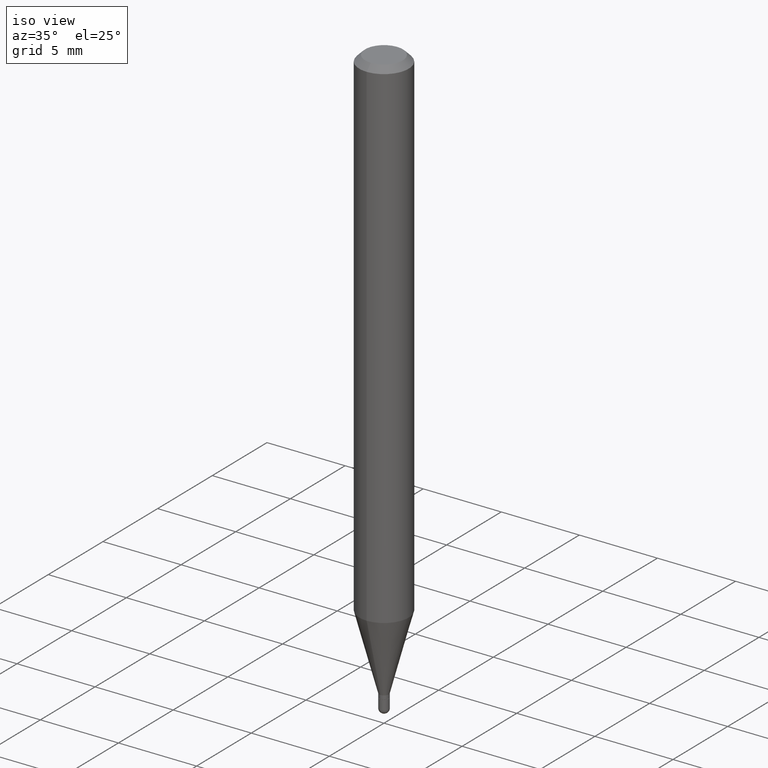
[diagram: clean part render]
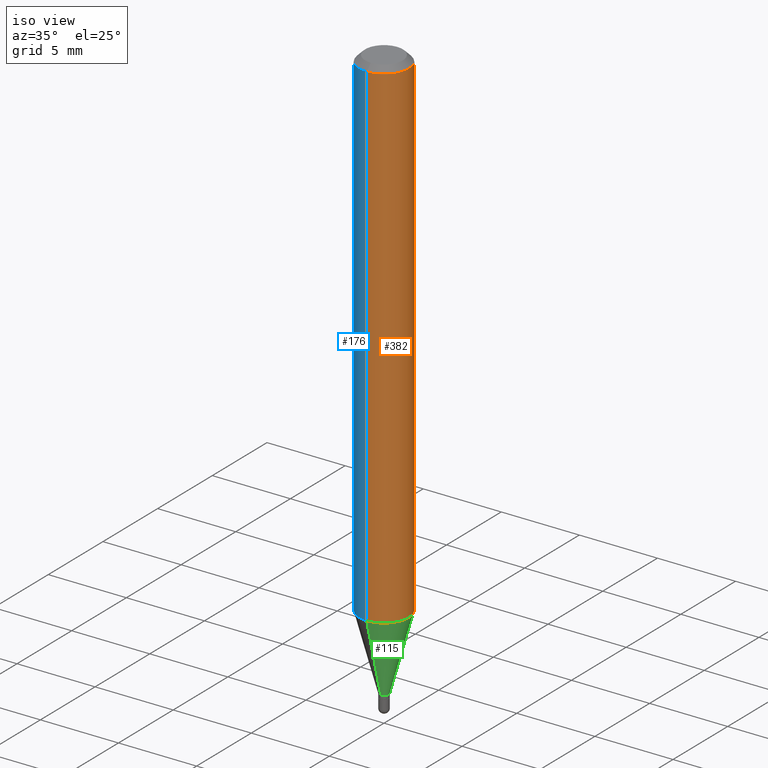
[diagram: same view with three faces highlighted in distinct colors, each labeled with its STEP entity id]
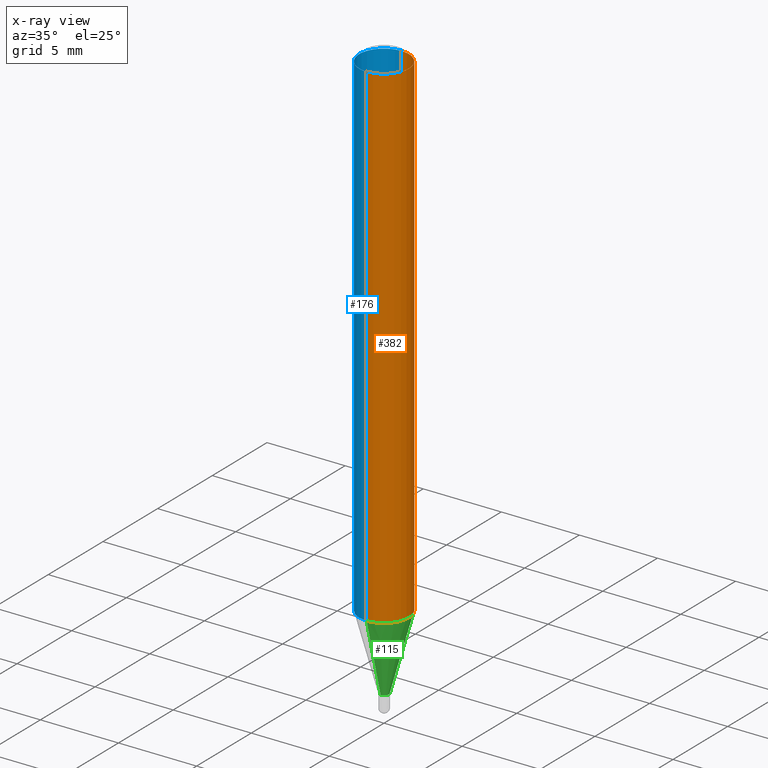
[diagram: x-ray of the same camera — body ghosted, the three highlighted faces saturated]
A machine part, iso view with three faces highlighted in distinct colors.
The next image is the same camera in x-ray (body ghosted, the three faces saturated) — at least one of them is partly hidden behind the body in this view.
Their STEP definitions:

[orange] entity #382 — the highlighted cylindrical surface (edge-blend (fillet) strip) has radius 1.5875 mm, axis along (-0, 0, 1).
#13 = LINE ( 'NONE', #56, #472 ) ;
#36 = AXIS2_PLACEMENT_3D ( 'NONE', #133, #93, #280 ) ;
#56 = CARTESIAN_POINT ( 'NONE',  ( -4.364351673553916201E-16, -0.06250000000000000000, 2.182183949652184739E-16 ) ) ;
#61 = CARTESIAN_POINT ( 'NONE',  ( -4.364351673553606573E-16, -0.06250000000000442701, -1.265531434217771922 ) ) ;
#93 = DIRECTION ( 'NONE',  ( -2.445459741880358586E-29, 3.491494319443495582E-15, 1.000000000000000000 ) ) ;
#106 = EDGE_CURVE ( 'NONE', #338, #298, #13, .T. ) ;
#116 = VERTEX_POINT ( 'NONE', #437 ) ;
#121 = ORIENTED_EDGE ( 'NONE', *, *, #406, .T. ) ;
#133 = CARTESIAN_POINT ( 'NONE',  ( 3.094806174463673262E-29, -4.418595813648531797E-15, -1.265531434217772144 ) ) ;
#154 = VECTOR ( 'NONE', #390, 39.37007874015748143 ) ;
#156 = FACE_OUTER_BOUND ( 'NONE', #497, .T. ) ;
#159 = CARTESIAN_POINT ( 'NONE',  ( 4.440892098500932831E-16, 0.06249999999999555911, -1.265531434217772366 ) ) ;
#172 = VERTEX_POINT ( 'NONE', #159 ) ;
#192 = LINE ( 'NONE', #272, #154 ) ;
#207 = DIRECTION ( 'NONE',  ( -2.445459741880358586E-29, 3.491494319443495582E-15, 1.000000000000000000 ) ) ;
#241 = CYLINDRICAL_SURFACE ( 'NONE', #307, 0.06250000000000000000 ) ;
#264 = EDGE_CURVE ( 'NONE', #298, #116, #474, .T. ) ;
#272 = CARTESIAN_POINT ( 'NONE',  ( 4.440892098500625669E-16, 0.06250000000000000000, -2.182183949652184739E-16 ) ) ;
#280 = DIRECTION ( 'NONE',  ( -6.982962677686265922E-15, -1.000000000000000000, 4.370956789862821150E-15 ) ) ;
#292 = DIRECTION ( 'NONE',  ( -6.982962677686265922E-15, -1.000000000000000000, 3.483106191921935554E-15 ) ) ;
#298 = VERTEX_POINT ( 'NONE', #412 ) ;
#307 = AXIS2_PLACEMENT_3D ( 'NONE', #391, #310, #313 ) ;
#310 = DIRECTION ( 'NONE',  ( -2.445459741880358586E-29, 3.491494319443495582E-15, 1.000000000000000000 ) ) ;
#313 = DIRECTION ( 'NONE',  ( -6.982962677686265922E-15, -1.000000000000000000, 3.491494319443495582E-15 ) ) ;
#329 = CARTESIAN_POINT ( 'NONE',  ( 3.668189612820540681E-31, -5.237241479165246480E-17, -0.01500000000000000812 ) ) ;
#338 = VERTEX_POINT ( 'NONE', #61 ) ;
#343 = CIRCLE ( 'NONE', #36, 0.06250000000000000000 ) ;
#347 = ORIENTED_EDGE ( 'NONE', *, *, #375, .T. ) ;
#371 = DIRECTION ( 'NONE',  ( -2.445459741880358586E-29, 3.491494319443495582E-15, 1.000000000000000000 ) ) ;
#375 = EDGE_CURVE ( 'NONE', #338, #172, #343, .T. ) ;
#382 = ADVANCED_FACE ( 'NONE', ( #156 ), #241, .T. ) ;
#390 = DIRECTION ( 'NONE',  ( -2.445459741880358586E-29, 3.491494319443495582E-15, 1.000000000000000000 ) ) ;
#391 = CARTESIAN_POINT ( 'NONE',  ( 0.000000000000000000, 0.000000000000000000, 0.000000000000000000 ) ) ;
#401 = AXIS2_PLACEMENT_3D ( 'NONE', #329, #371, #292 ) ;
#406 = EDGE_CURVE ( 'NONE', #172, #116, #192, .T. ) ;
#412 = CARTESIAN_POINT ( 'NONE',  ( -4.364351673553912750E-16, -0.06250000000000005551, -0.01499999999999979128 ) ) ;
#437 = CARTESIAN_POINT ( 'NONE',  ( 4.440892098500936776E-16, 0.06249999999999993755, -0.01500000000000022669 ) ) ;
#472 = VECTOR ( 'NONE', #207, 39.37007874015748143 ) ;
#474 = CIRCLE ( 'NONE', #401, 0.06250000000000000000 ) ;
#492 = ORIENTED_EDGE ( 'NONE', *, *, #106, .F. ) ;
#497 = EDGE_LOOP ( 'NONE', ( #347, #121, #504, #492 ) ) ;
#504 = ORIENTED_EDGE ( 'NONE', *, *, #264, .F. ) ;

[blue] entity #176 — the highlighted cylindrical surface (edge-blend (fillet) strip) has radius 1.5875 mm, axis along (-0, 0, 1).
#8 = DIRECTION ( 'NONE',  ( -6.982962677686265922E-15, -1.000000000000000000, 3.491494319443495582E-15 ) ) ;
#13 = LINE ( 'NONE', #56, #472 ) ;
#33 = ORIENTED_EDGE ( 'NONE', *, *, #235, .T. ) ;
#45 = CARTESIAN_POINT ( 'NONE',  ( 0.000000000000000000, 0.000000000000000000, 0.000000000000000000 ) ) ;
#56 = CARTESIAN_POINT ( 'NONE',  ( -4.364351673553916201E-16, -0.06250000000000000000, 2.182183949652184739E-16 ) ) ;
#61 = CARTESIAN_POINT ( 'NONE',  ( -4.364351673553606573E-16, -0.06250000000000442701, -1.265531434217771922 ) ) ;
#78 = CIRCLE ( 'NONE', #118, 0.06250000000000000000 ) ;
#88 = CYLINDRICAL_SURFACE ( 'NONE', #215, 0.06250000000000000000 ) ;
#106 = EDGE_CURVE ( 'NONE', #338, #298, #13, .T. ) ;
#113 = EDGE_LOOP ( 'NONE', ( #127, #33, #369, #442 ) ) ;
#116 = VERTEX_POINT ( 'NONE', #437 ) ;
#118 = AXIS2_PLACEMENT_3D ( 'NONE', #295, #485, #217 ) ;
#127 = ORIENTED_EDGE ( 'NONE', *, *, #406, .F. ) ;
#128 = FACE_OUTER_BOUND ( 'NONE', #113, .T. ) ;
#154 = VECTOR ( 'NONE', #390, 39.37007874015748143 ) ;
#159 = CARTESIAN_POINT ( 'NONE',  ( 4.440892098500932831E-16, 0.06249999999999555911, -1.265531434217772366 ) ) ;
#172 = VERTEX_POINT ( 'NONE', #159 ) ;
#176 = ADVANCED_FACE ( 'NONE', ( #128 ), #88, .T. ) ;
#192 = LINE ( 'NONE', #272, #154 ) ;
#195 = DIRECTION ( 'NONE',  ( -2.445459741880358586E-29, 3.491494319443495582E-15, 1.000000000000000000 ) ) ;
#200 = CIRCLE ( 'NONE', #293, 0.06250000000000000000 ) ;
#207 = DIRECTION ( 'NONE',  ( -2.445459741880358586E-29, 3.491494319443495582E-15, 1.000000000000000000 ) ) ;
#215 = AXIS2_PLACEMENT_3D ( 'NONE', #45, #195, #8 ) ;
#217 = DIRECTION ( 'NONE',  ( -6.982962677686265922E-15, -1.000000000000000000, 3.483106191921935554E-15 ) ) ;
#235 = EDGE_CURVE ( 'NONE', #172, #338, #200, .T. ) ;
#254 = CARTESIAN_POINT ( 'NONE',  ( 3.094806174463673262E-29, -4.418595813648531797E-15, -1.265531434217772144 ) ) ;
#272 = CARTESIAN_POINT ( 'NONE',  ( 4.440892098500625669E-16, 0.06250000000000000000, -2.182183949652184739E-16 ) ) ;
#291 = EDGE_CURVE ( 'NONE', #116, #298, #78, .T. ) ;
#293 = AXIS2_PLACEMENT_3D ( 'NONE', #254, #443, #408 ) ;
#295 = CARTESIAN_POINT ( 'NONE',  ( 3.668189612820540681E-31, -5.237241479165246480E-17, -0.01500000000000000812 ) ) ;
#298 = VERTEX_POINT ( 'NONE', #412 ) ;
#338 = VERTEX_POINT ( 'NONE', #61 ) ;
#369 = ORIENTED_EDGE ( 'NONE', *, *, #106, .T. ) ;
#390 = DIRECTION ( 'NONE',  ( -2.445459741880358586E-29, 3.491494319443495582E-15, 1.000000000000000000 ) ) ;
#406 = EDGE_CURVE ( 'NONE', #172, #116, #192, .T. ) ;
#408 = DIRECTION ( 'NONE',  ( -6.982962677686265922E-15, -1.000000000000000000, 4.370956789862821150E-15 ) ) ;
#412 = CARTESIAN_POINT ( 'NONE',  ( -4.364351673553912750E-16, -0.06250000000000005551, -0.01499999999999979128 ) ) ;
#437 = CARTESIAN_POINT ( 'NONE',  ( 4.440892098500936776E-16, 0.06249999999999993755, -0.01500000000000022669 ) ) ;
#442 = ORIENTED_EDGE ( 'NONE', *, *, #291, .F. ) ;
#443 = DIRECTION ( 'NONE',  ( -2.445459741880358586E-29, 3.491494319443495582E-15, 1.000000000000000000 ) ) ;
#472 = VECTOR ( 'NONE', #207, 39.37007874015748143 ) ;
#485 = DIRECTION ( 'NONE',  ( -2.445459741880358586E-29, 3.491494319443495582E-15, 1.000000000000000000 ) ) ;

[green] entity #115 — the highlighted conical surface has half-angle 15 deg.
#10 = EDGE_CURVE ( 'NONE', #340, #172, #161, .T. ) ;
#23 = EDGE_LOOP ( 'NONE', ( #436, #306, #250, #125 ) ) ;
#29 = VECTOR ( 'NONE', #270, 39.37007874015748143 ) ;
#36 = AXIS2_PLACEMENT_3D ( 'NONE', #133, #93, #280 ) ;
#43 = DIRECTION ( 'NONE',  ( -6.982962677686266711E-15, -1.000000000000000000, 0.000000000000000000 ) ) ;
#54 = DIRECTION ( 'NONE',  ( 1.839019923739599921E-15, 0.2588190451025249028, 0.9659258262890670910 ) ) ;
#61 = CARTESIAN_POINT ( 'NONE',  ( -4.364351673553606573E-16, -0.06250000000000442701, -1.265531434217771922 ) ) ;
#62 = CIRCLE ( 'NONE', #458, 0.01199999999999992219 ) ;
#89 = DIRECTION ( 'NONE',  ( -2.445459741880358586E-29, 3.491494319443495582E-15, 1.000000000000000000 ) ) ;
#93 = DIRECTION ( 'NONE',  ( -2.445459741880358586E-29, 3.491494319443495582E-15, 1.000000000000000000 ) ) ;
#101 = DIRECTION ( 'NONE',  ( -2.445459741880358586E-29, 3.491494319443495582E-15, 1.000000000000000000 ) ) ;
#115 = ADVANCED_FACE ( 'NONE', ( #163 ), #258, .T. ) ;
#125 = ORIENTED_EDGE ( 'NONE', *, *, #498, .F. ) ;
#133 = CARTESIAN_POINT ( 'NONE',  ( 3.094806174463673262E-29, -4.418595813648531797E-15, -1.265531434217772144 ) ) ;
#152 = CARTESIAN_POINT ( 'NONE',  ( -8.379555213219910077E-17, -0.01200000000000499972, -1.454000000000000181 ) ) ;
#159 = CARTESIAN_POINT ( 'NONE',  ( 4.440892098500932831E-16, 0.06249999999999555911, -1.265531434217772366 ) ) ;
#161 = LINE ( 'NONE', #208, #374 ) ;
#163 = FACE_OUTER_BOUND ( 'NONE', #23, .T. ) ;
#172 = VERTEX_POINT ( 'NONE', #159 ) ;
#208 = CARTESIAN_POINT ( 'NONE',  ( 8.526512829124701746E-17, 0.01199999999999484465, -1.454000000000000181 ) ) ;
#230 = CARTESIAN_POINT ( 'NONE',  ( 2.646771690706703907E-16, 0.01199999999999484465, -1.454000000000000181 ) ) ;
#239 = DIRECTION ( 'NONE',  ( -6.982962677686266711E-15, -1.000000000000000000, 0.000000000000000000 ) ) ;
#250 = ORIENTED_EDGE ( 'NONE', *, *, #375, .F. ) ;
#258 = CONICAL_SURFACE ( 'NONE', #323, 0.01199999999999992219, 0.2617993877991502405 ) ;
#268 = CARTESIAN_POINT ( 'NONE',  ( 3.555698464694041863E-29, -5.076632740470843581E-15, -1.454000000000000181 ) ) ;
#270 = DIRECTION ( 'NONE',  ( -1.807323732225329745E-15, -0.2588190451025181305, 0.9659258262890689783 ) ) ;
#280 = DIRECTION ( 'NONE',  ( -6.982962677686265922E-15, -1.000000000000000000, 4.370956789862821150E-15 ) ) ;
#306 = ORIENTED_EDGE ( 'NONE', *, *, #10, .T. ) ;
#312 = CARTESIAN_POINT ( 'NONE',  ( -8.379555213219910077E-17, -0.01200000000000499972, -1.454000000000000181 ) ) ;
#323 = AXIS2_PLACEMENT_3D ( 'NONE', #268, #101, #239 ) ;
#338 = VERTEX_POINT ( 'NONE', #61 ) ;
#340 = VERTEX_POINT ( 'NONE', #230 ) ;
#343 = CIRCLE ( 'NONE', #36, 0.06250000000000000000 ) ;
#361 = VERTEX_POINT ( 'NONE', #152 ) ;
#363 = EDGE_CURVE ( 'NONE', #361, #340, #62, .T. ) ;
#374 = VECTOR ( 'NONE', #54, 39.37007874015748143 ) ;
#375 = EDGE_CURVE ( 'NONE', #338, #172, #343, .T. ) ;
#436 = ORIENTED_EDGE ( 'NONE', *, *, #363, .T. ) ;
#458 = AXIS2_PLACEMENT_3D ( 'NONE', #476, #89, #43 ) ;
#461 = LINE ( 'NONE', #312, #29 ) ;
#476 = CARTESIAN_POINT ( 'NONE',  ( 3.555698464694041863E-29, -5.076632740470843581E-15, -1.454000000000000181 ) ) ;
#498 = EDGE_CURVE ( 'NONE', #361, #338, #461, .T. ) ;